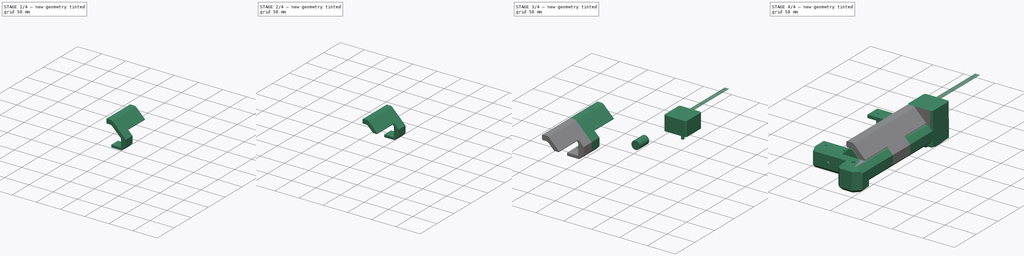
[diagram: build sequence overview — one tinted view per stage of 4, left to right]
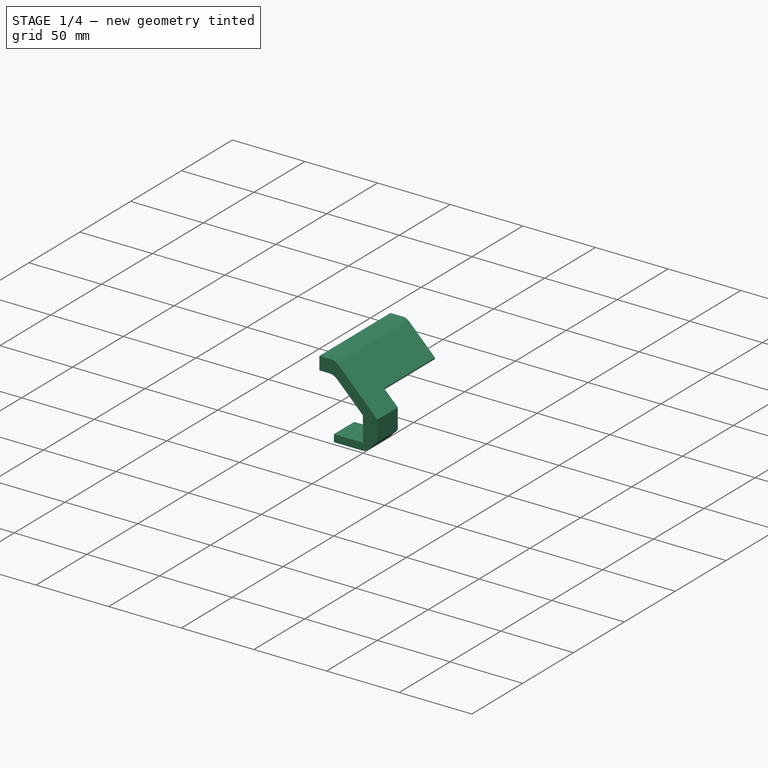
[diagram: stage 1 of 4 — iso view after this stage's code; geometry added in this stage tinted green]
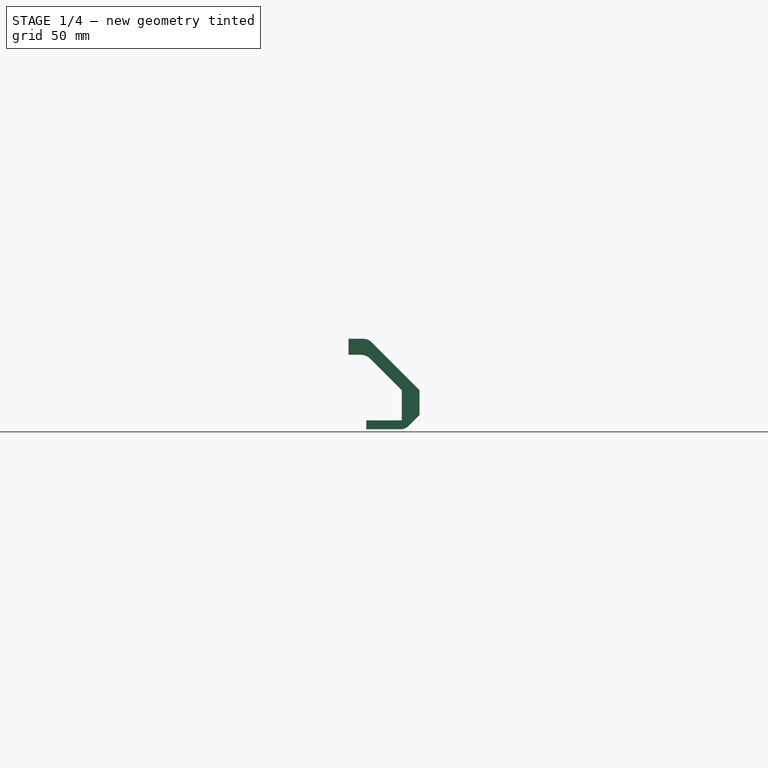
[diagram: stage 1 of 4 — front view after this stage's code; geometry added in this stage tinted green]
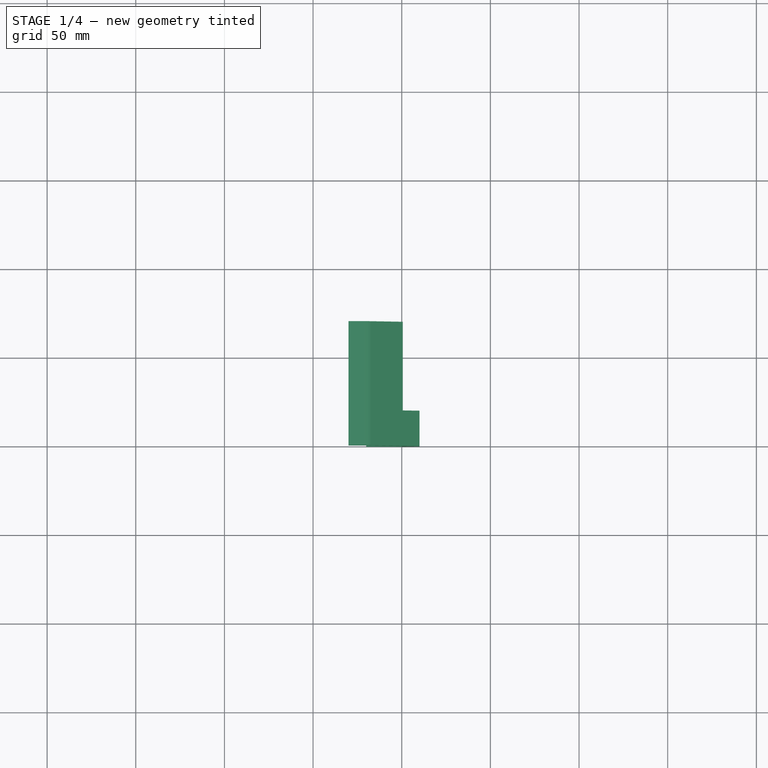
[diagram: stage 1 of 4 — top view after this stage's code; geometry added in this stage tinted green]
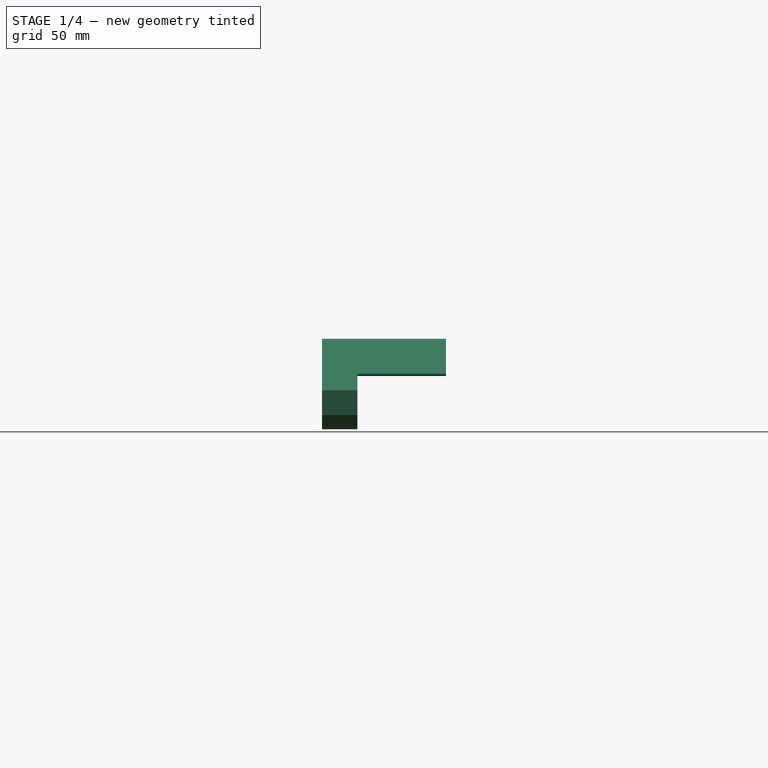
[diagram: stage 1 of 4 — right view after this stage's code; geometry added in this stage tinted green]
FCSTD DOCUMENT  (FreeCAD 0.16R6698 (Git))
Label: AxisShield
License: All rights reserved
LicenseURL: http://en.wikipedia.org/wiki/All_rights_reserved
objects: Part::Mirroring×5, Part::Feature×4, Sketcher::SketchObject×4, PartDesign::Pocket×3, Part::Fillet×2, Part::Compound×1, PartDesign::Pad×1, Part::MultiFuse×1, App::DocumentObjectGroup×1
note: 25 computed .brp shape members not serialized (recipe doc carries the construction recipe); baked Part::Feature solids carry a one-line shape summary decoded from their .brp

FEATURE [Sketcher::SketchObject] Sketch  label="Base"
  Placement = pos=(0,0,0) rot=(1,0,0;1.5708rad)
  sketch-geometry (11):
    g0: LineSegment StartX=-30 StartY=36 StartZ=0 EndX=-19 EndY=36 EndZ=0
    g1: LineSegment StartX=-19 StartY=36 StartZ=0 EndX=10 EndY=7 EndZ=0
    g2: LineSegment StartX=10 StartY=7 StartZ=0 EndX=10 EndY=-7 EndZ=0
    g3: LineSegment StartX=10 StartY=-7 StartZ=0 EndX=2 EndY=-15 EndZ=0
    g4: LineSegment StartX=2 StartY=-15 StartZ=0 EndX=-20 EndY=-15 EndZ=0
    g5: LineSegment StartX=-20 StartY=-15 StartZ=0 EndX=-20 EndY=-10 EndZ=0
    g6: LineSegment StartX=-20 StartY=-10 StartZ=0 EndX=0 EndY=-10 EndZ=0
    g7: LineSegment StartX=0 StartY=-10 StartZ=0 EndX=0 EndY=7 EndZ=0
    g8: LineSegment StartX=-30 StartY=27 StartZ=0 EndX=-30 EndY=36 EndZ=0
    g9: LineSegment StartX=-20 StartY=27 StartZ=0 EndX=0 EndY=7 EndZ=0
    g10: LineSegment StartX=-30 StartY=27 StartZ=0 EndX=-20 EndY=27 EndZ=0
  constraints (33):
    c: Coincident(g0,g1)
    c: Coincident(g1,g2)
    c: Coincident(g2,g3)
    c: Coincident(g3,g4)
    c: Coincident(g4,g5)
    c: Coincident(g5,g6)
    c: Coincident(g6,g7)
    c: Coincident(g8,g0)
    c: Horizontal(g0)
    c: Horizontal(g6)
    c: Horizontal(g4)
    c: Vertical(g5)
    c: Vertical(g8)
    c: Vertical(g2)
    c: DistanceX(g6) = 20
    c: Vertical(g7)
    c: DistanceX(g4) = -20
    c: DistanceY(g5) = 5
    c: Perpendicular(g3,g1)
    c: Angle(g1) = -0.785398
    c: Symmetric(g2,g1,g-1)
    c: DistanceX(g3,g2) = 8
    c: DistanceX(g1) = 10
    c: Parallel(g9,g1)
    c: DistanceY(g5) = -10
    c: DistanceX(g0) = -30
    c: DistanceY(g0) = 36
    c: Horizontal(g10)
    c: Coincident(g10,g8)
    c: Coincident(g9,g10)
    c: Coincident(g9,g7)
    c: DistanceY(g8) = 27
    c: DistanceX(g9,g0) = 1
FEATURE [PartDesign::Pad] Pad  label="Base001"
  Length = 70
  Length2 = 100
  Placement = pos=(0,0,0) rot=(1,0,0;1.5708rad)
  Reversed = true
  Sketch = -> Sketch
  Type = 0
FEATURE [Sketcher::SketchObject] Sketch001  label="CornerHole"
  Placement = pos=(10,0,0) rot=(0.707107,0,0.707107;3.14159rad)
  Support = -> Pad [Face3]
  sketch-geometry (4):
    g0: LineSegment StartX=-28.7393 StartY=-20 StartZ=0 EndX=15 EndY=-20 EndZ=0
    g1: LineSegment StartX=15 StartY=-20 StartZ=0 EndX=15 EndY=-71.9866 EndZ=0
    g2: LineSegment StartX=15 StartY=-71.9866 StartZ=0 EndX=-28.7393 EndY=-71.9866 EndZ=0
    g3: LineSegment StartX=-28.7393 StartY=-71.9866 StartZ=0 EndX=-28.7393 EndY=-20 EndZ=0
  constraints (10):
    c: Coincident(g0,g1)
    c: Coincident(g1,g2)
    c: Coincident(g2,g3)
    c: Coincident(g3,g0)
    c: Horizontal(g0)
    c: Horizontal(g2)
    c: Vertical(g1)
    c: Vertical(g3)
    c: DistanceX(g0) = 15
    c: DistanceY(g0) = -20
FEATURE [PartDesign::Pocket] Pocket  label="CornerHole001"
  Length = 5
  Placement = pos=(0,0,0) rot=(1,0,0;1.5708rad)
  Sketch = -> Sketch001
  Type = 1
FEATURE [Part::Fillet] Fillet  label="AntiCreaseFillet"
  Base = -> Pocket
  Edges = 4 edges: [Edge2 r=6,Edge11 r=1,Edge24 r=8,Edge35 r=6]
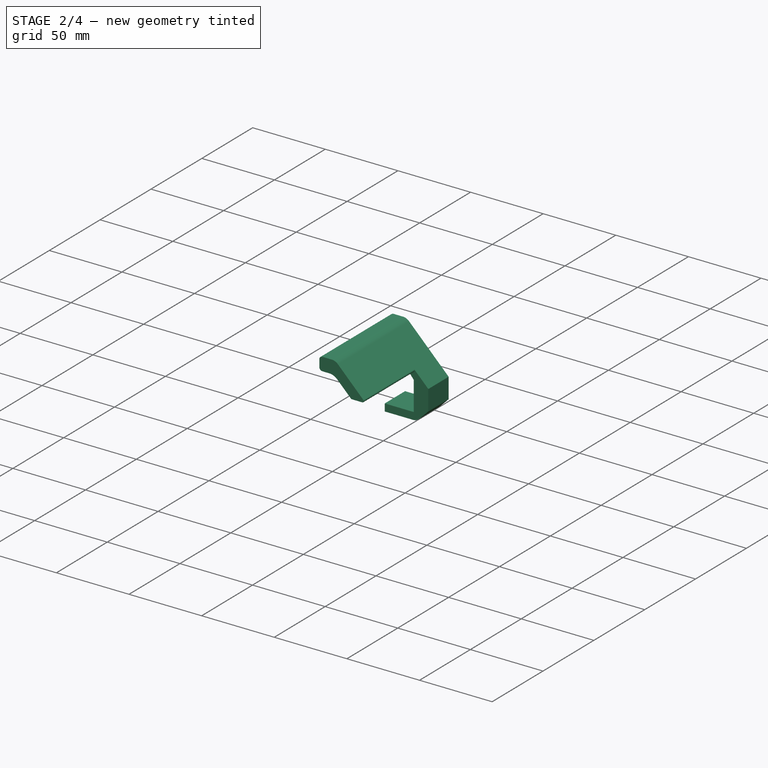
[diagram: stage 2 of 4 — iso view after this stage's code; geometry added in this stage tinted green]
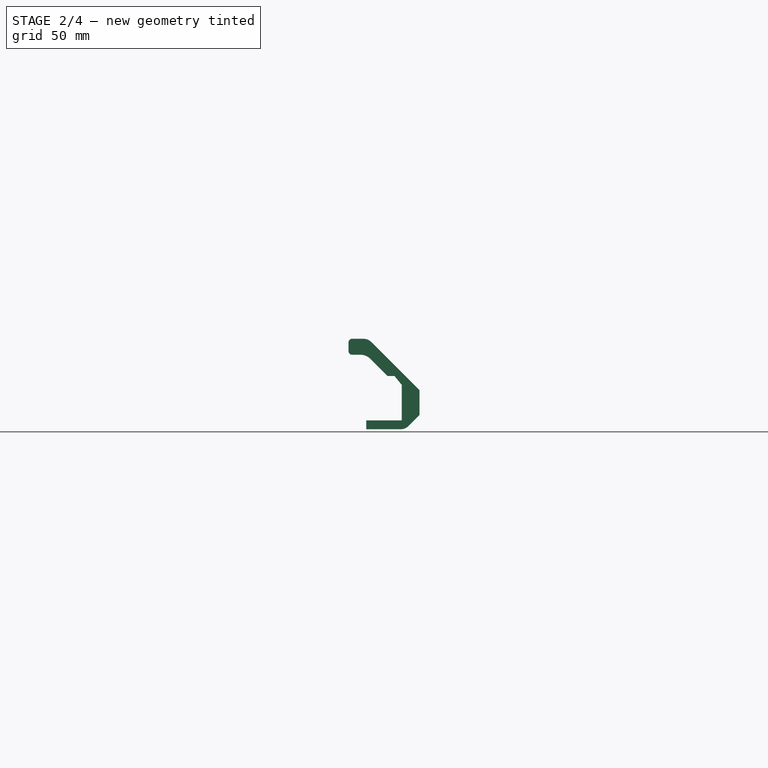
[diagram: stage 2 of 4 — front view after this stage's code; geometry added in this stage tinted green]
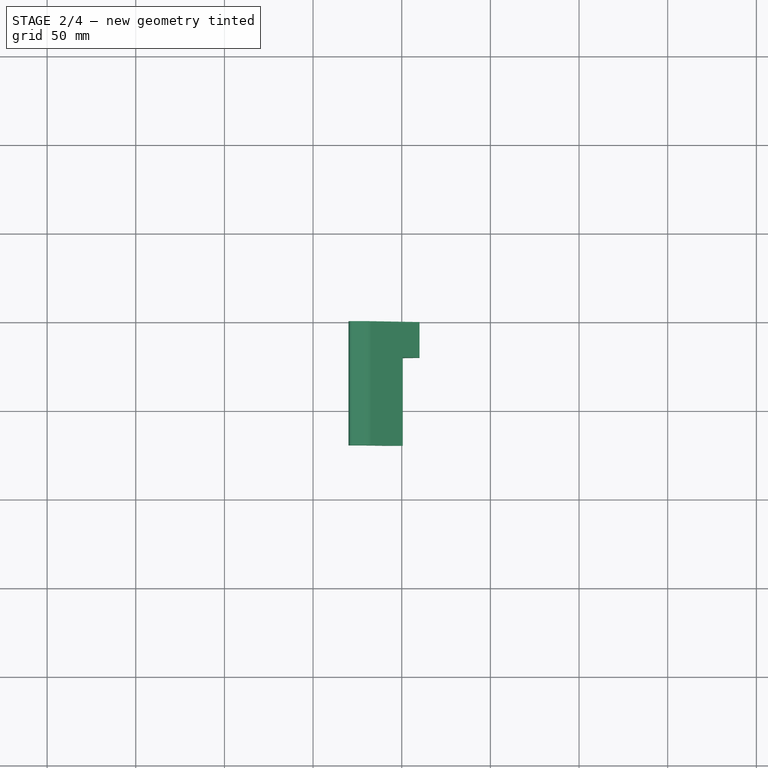
[diagram: stage 2 of 4 — top view after this stage's code; geometry added in this stage tinted green]
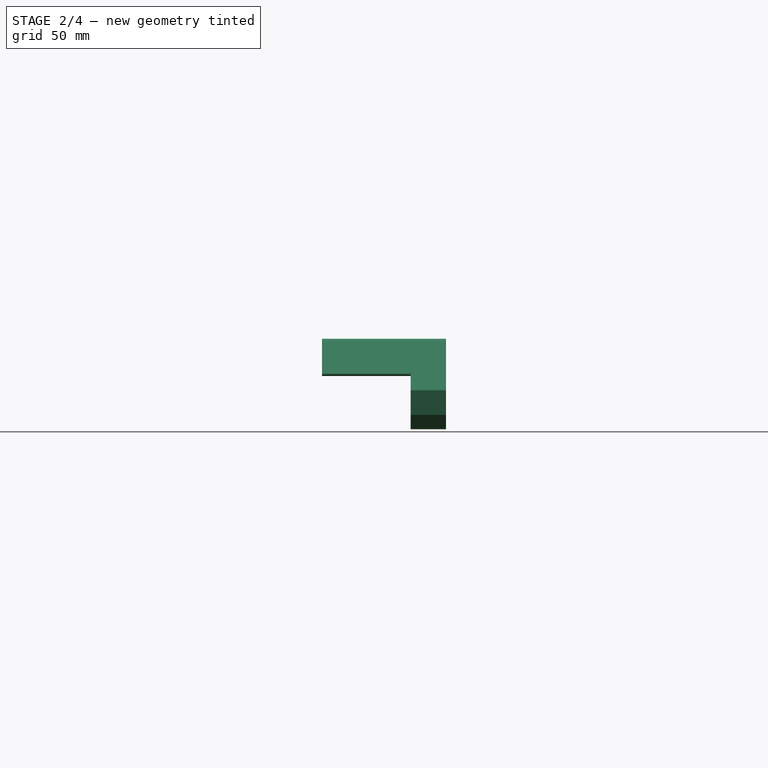
[diagram: stage 2 of 4 — right view after this stage's code; geometry added in this stage tinted green]
FEATURE [Sketcher::SketchObject] Sketch003  label="AxisSpace"
  Placement = pos=(0,0,0) rot=(1,0,0;1.5708rad)
  Support = -> Fillet [Face2]
  sketch-geometry (6):
    g0: ArcOfCircle CenterX=-23 CenterY=20 CenterZ=0 NormalX=0 NormalY=0 NormalZ=1 Radius=11.5 StartAngle=0.684327 EndAngle=1.57079
    g1: LineSegment StartX=-23 StartY=31.5 StartZ=0 EndX=-44.0701 EndY=31.5 EndZ=0
    g2: LineSegment StartX=-44.0701 StartY=31.5 StartZ=0 EndX=-44.0701 EndY=-6.13938 EndZ=0
    g3: LineSegment StartX=-44.0701 StartY=-6.13938 StartZ=0 EndX=0 EndY=-6.13938 EndZ=0
    g4: LineSegment StartX=0 StartY=-6.13938 StartZ=0 EndX=0 EndY=10 EndZ=0
    g5: LineSegment StartX=0 StartY=10 StartZ=0 EndX=-14.0893 EndY=27.2697 EndZ=0
  constraints (17):
    c: Coincident(g1,g2)
    c: Coincident(g2,g3)
    c: Coincident(g3,g4)
    c: Coincident(g4,g5)
    c: Horizontal(g3)
    c: Horizontal(g1)
    c: Vertical(g2)
    c: Vertical(g4)
    c: Coincident(g0,g1)
    c: Coincident(g0,g5)
    c: Tangent(g0,g1)
    c: Tangent(g0,g5)
    c: DistanceX(g0) = -23
    c: DistanceY(g0) = 20
    c: PointOnObject(g4,g-2)
    c: DistanceY(g4) = 10
    c: Radius(g0) = 11.5
FEATURE [PartDesign::Pocket] Pocket013013012003002  label="AxisSpace001"
  Length = 50
  Sketch = -> Sketch003
  Type = 0
FEATURE [Part::Fillet] Fillet004002  label="PrettyFillet"
  Base = -> Pocket013013012003002
  Edges = 3 edges r=2: [Edge3,Edge23,Edge25]
FEATURE [Part::Mirroring] Part__Mirroring  label="PrettyFillet (Mirror #5)"
  Base = (0,0,0)
  Normal = (0,1,0)
  Source = -> Fillet004002
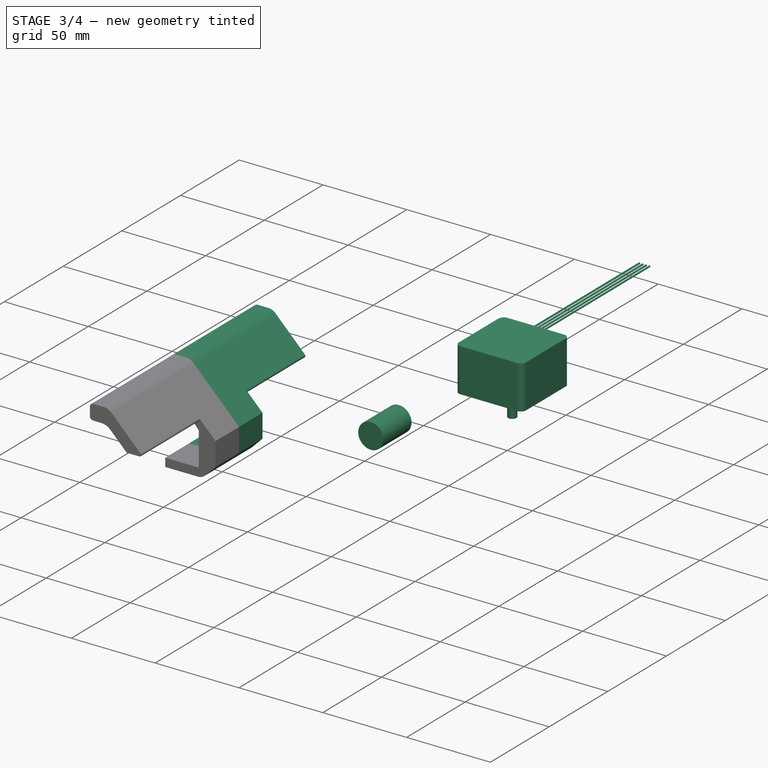
[diagram: stage 3 of 4 — iso view after this stage's code; geometry added in this stage tinted green]
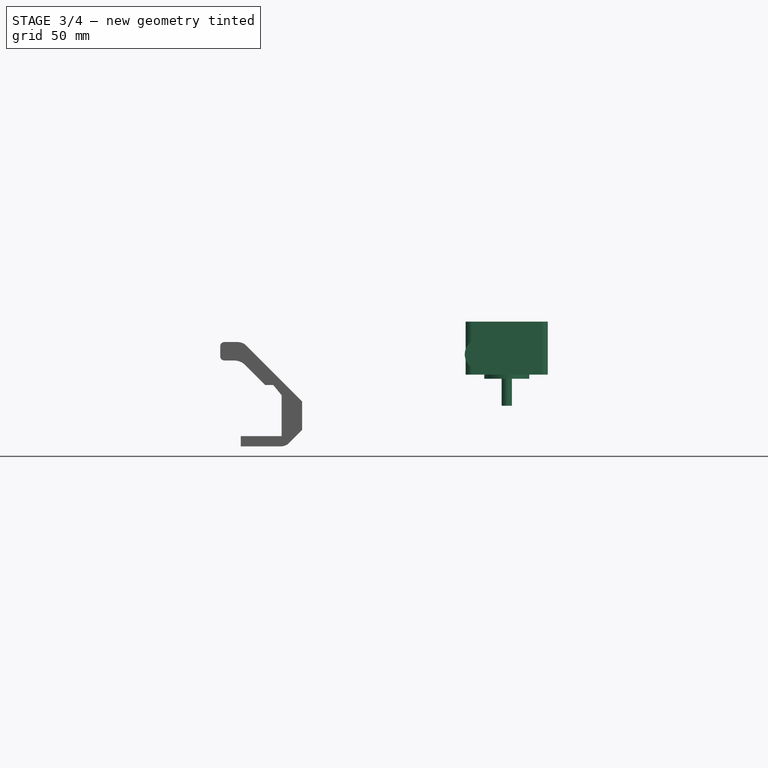
[diagram: stage 3 of 4 — front view after this stage's code; geometry added in this stage tinted green]
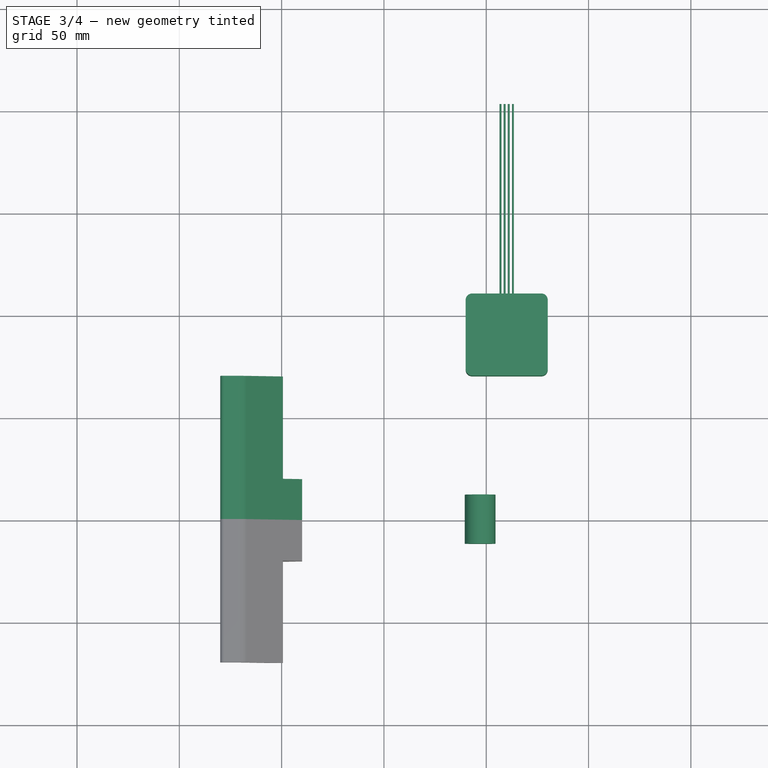
[diagram: stage 3 of 4 — top view after this stage's code; geometry added in this stage tinted green]
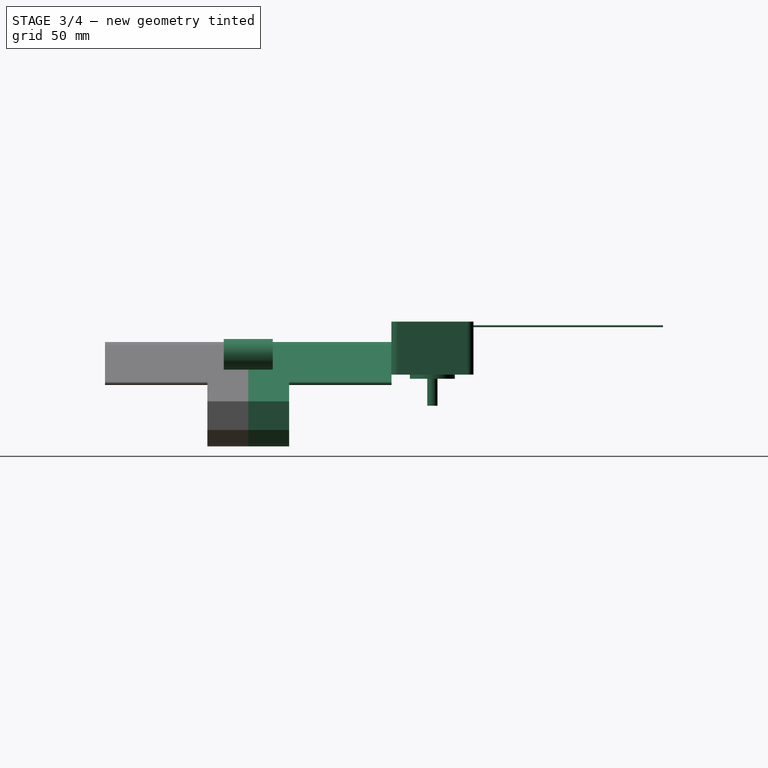
[diagram: stage 3 of 4 — right view after this stage's code; geometry added in this stage tinted green]
FEATURE [Part::Mirroring] Part__Mirroring006  label="LM8UU001 (Mirror #7)"
  Base = (0,0,0)
  Normal = (1,0,0)
FEATURE [Part::Feature] Pocket008001  label="Ycarriage"
  Placement = pos=(70,0,10) rot=(0,0,1;0rad)
  shape: bbox 37.5 x 62 x 35.5 mm, 93 faces (baked)
FEATURE [Part::Mirroring] Part__Mirroring002  label="4018X SNGL (Mirror #3)"
  Base = (0,0,0)
  Normal = (1,0,0)
FEATURE [Part::MultiFuse] Fusion  label="Mirroring"
  Shapes = -> [Fillet004002,Part__Mirroring]
FEATURE [Sketcher::SketchObject] Sketch002  label="Bolt"
  Placement = pos=(0,0,-15) rot=(1,0,0;3.14159rad)
  Support = -> Fusion [Face38]
  sketch-geometry (4):
    g0: ArcOfCircle CenterX=-10 CenterY=0 CenterZ=0 NormalX=0 NormalY=0 NormalZ=1 Radius=1.5 StartAngle=4.10153 EndAngle=8.46484
    g1: LineSegment StartX=-10.8604 StartY=1.22874 StartZ=0 EndX=-12.6152 EndY=0 EndZ=0
    g2: LineSegment StartX=-12.6152 StartY=0 StartZ=0 EndX=-10.8604 EndY=-1.22874 EndZ=0
    g3: LineSegment [constr] StartX=-12.6152 StartY=0 StartZ=0 EndX=-10 EndY=0 EndZ=0
  constraints (12):
    c: Coincident(g2,g0)
    c: Coincident(g2,g1)
    c: Coincident(g1,g3)
    c: Coincident(g1,g0)
    c: Coincident(g3,g0)
    c: Tangent(g2,g0)
    c: Tangent(g1,g0)
    c: Angle(g2,g1) = 1.22173
    c: Radius(g0) = 1.5
    c: Angle(g3) = 0
    c: PointOnObject(g0,g-1)
    c: DistanceX(g0) = -10
FEATURE [PartDesign::Pocket] Pocket013013012003003  label="Bolt001"
  Length = 8
  Sketch = -> Sketch002
  Type = 0
FEATURE [App::DocumentObjectGroup] Grupo  label="src"
  Group = -> [Pad,Fillet,Fusion,Pocket013013012003003]
FEATURE [Part::Feature] Pocket013013012003003001  label="AxisShield"
  shape: bbox 40 x 140 x 51 mm, 37 faces (baked)
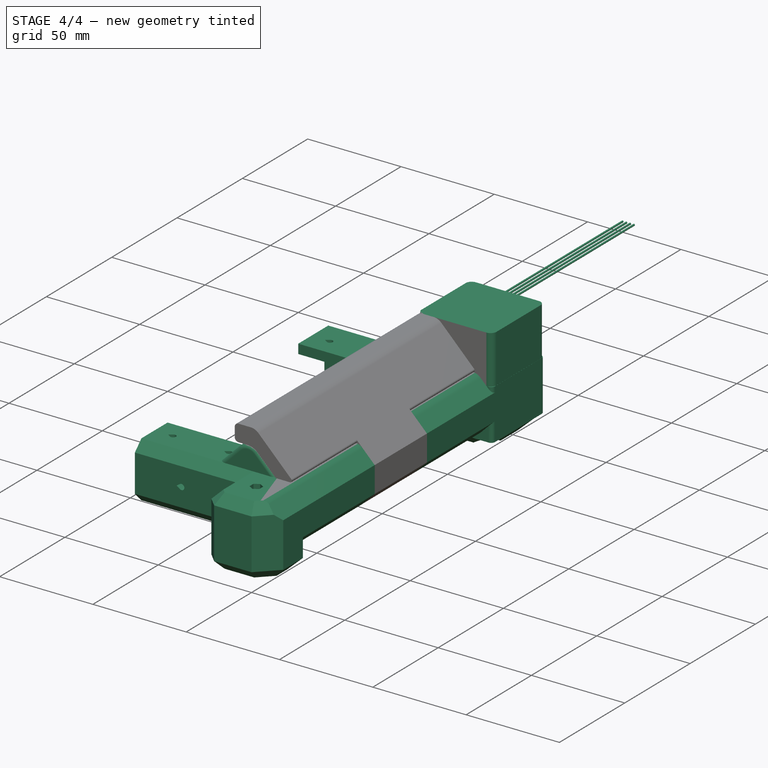
[diagram: stage 4 of 4 — iso view after this stage's code; geometry added in this stage tinted green]
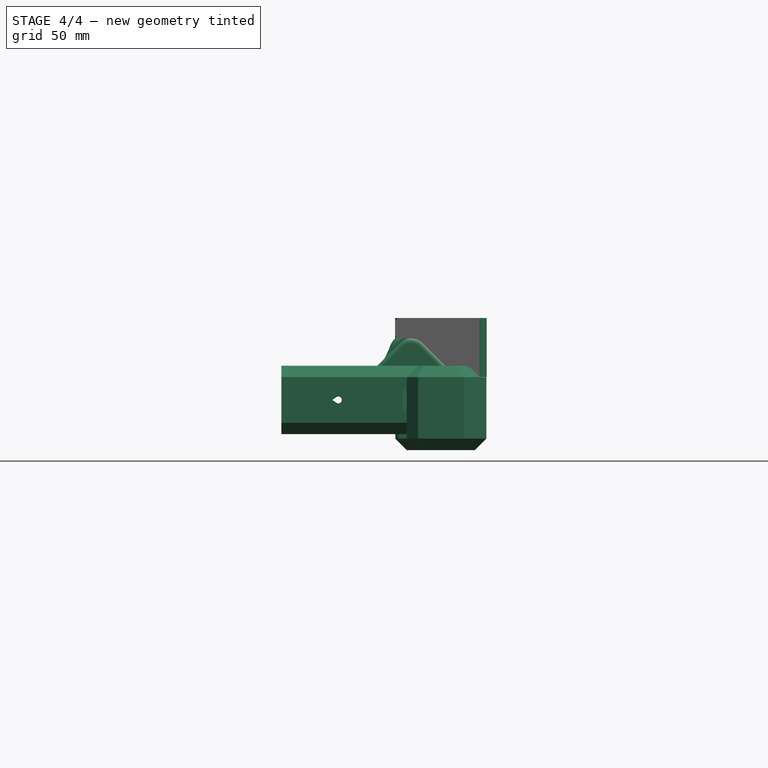
[diagram: stage 4 of 4 — front view after this stage's code; geometry added in this stage tinted green]
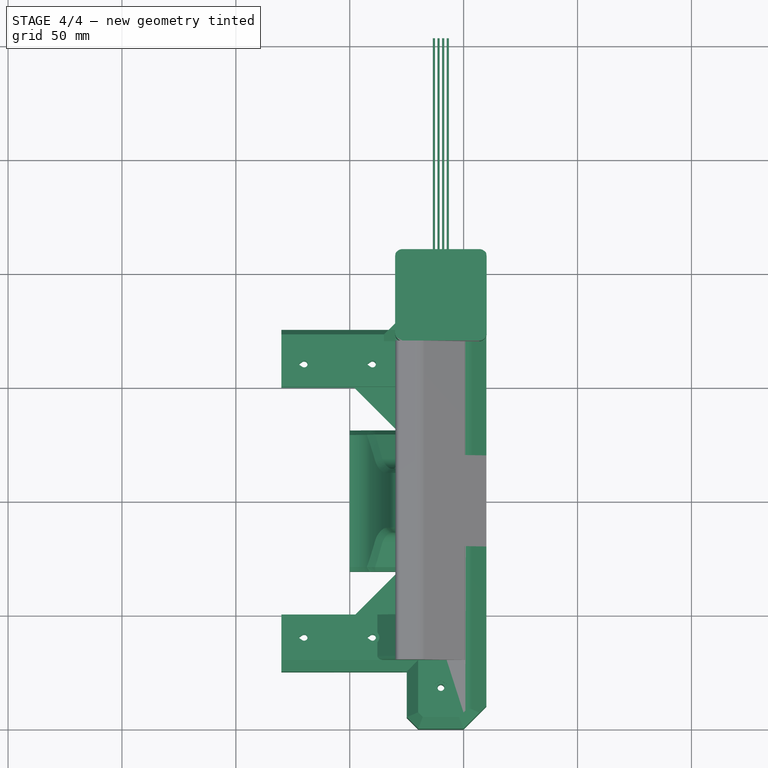
[diagram: stage 4 of 4 — top view after this stage's code; geometry added in this stage tinted green]
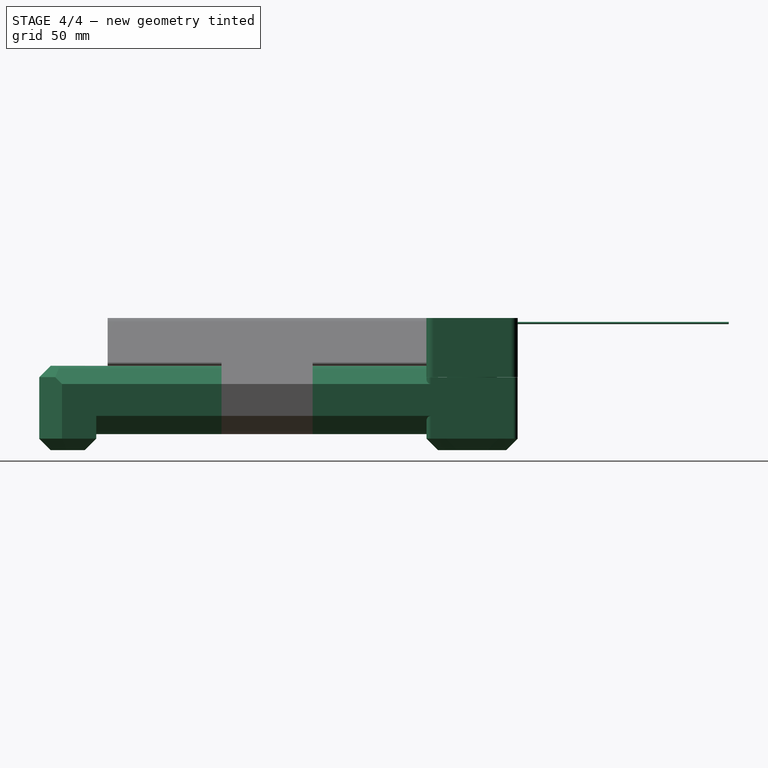
[diagram: stage 4 of 4 — right view after this stage's code; geometry added in this stage tinted green]
FEATURE [Part::Feature] Pocket013013012002  label="IdlerHold"
  Placement = pos=(110,-60,10) rot=(0,0,1;0rad)
  shape: bbox 90 x 80 x 49.58 mm, 105 faces (baked)
FEATURE [Part::Mirroring] Part__Mirroring001  label="T slot extrusion 20x20x140.001 (Mirror #2)"
  Base = (0,0,0)
  Normal = (1,0,0)
FEATURE [Part::Feature] Fillet004001  label="PulleyCover"
  Placement = pos=(110,90,20) rot=(0,0,1;0rad)
  shape: bbox 90 x 90 x 49 mm, 114 faces (baked)
FEATURE [Part::Mirroring] Part__Mirroring004  label="YBar (Mirror #5)"
  Base = (0,0,0)
  Normal = (1,0,0)
FEATURE [Part::Compound] Compound  label="Reference"
  Links = -> [Pocket013013012002,Part__Mirroring002,Part__Mirroring006,Pocket008001,Fillet004001,Part__Mirroring004,Part__Mirroring001]
  Placement = pos=(-120,0,-10) rot=(0,0,1;0rad)
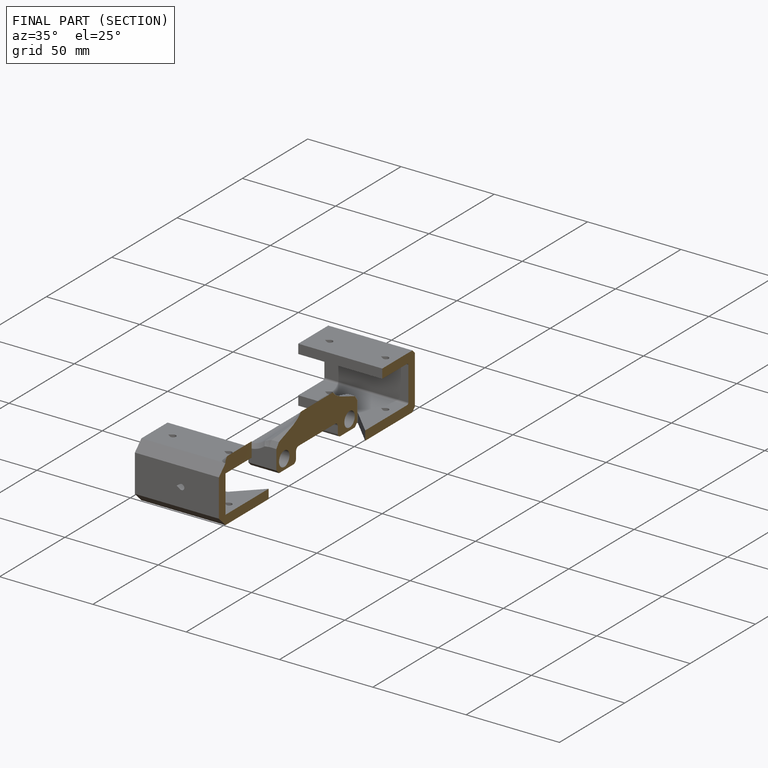
[diagram: finished part — half-section view (interior)]
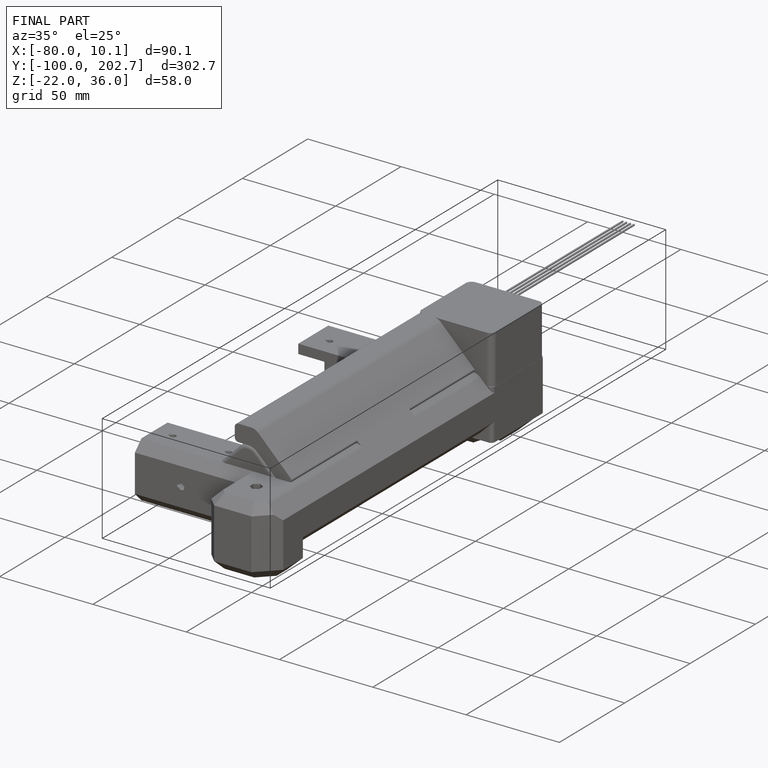
[diagram: finished part — iso view with bounding-box wireframe]
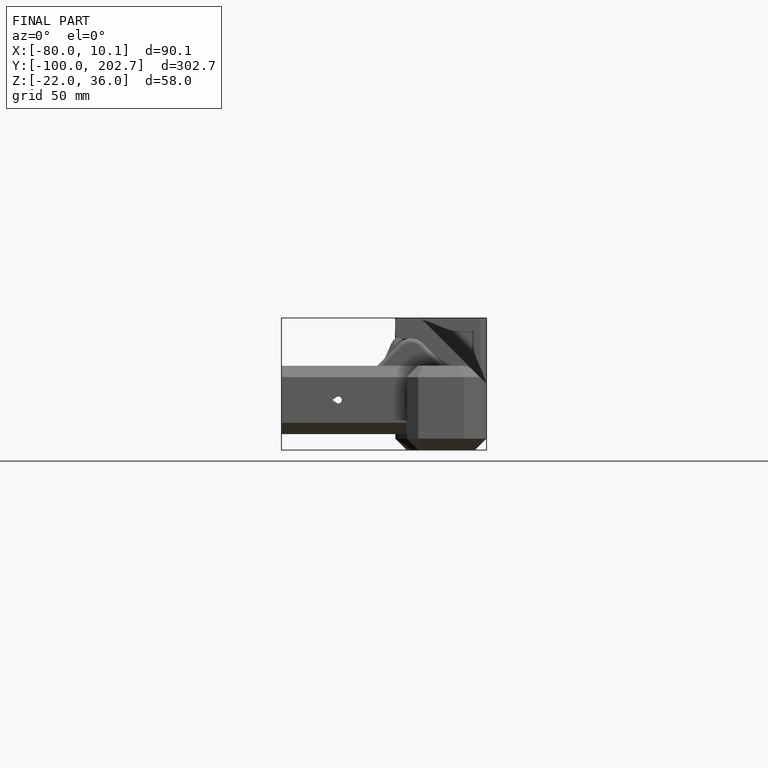
[diagram: finished part — front view with bounding-box wireframe]
